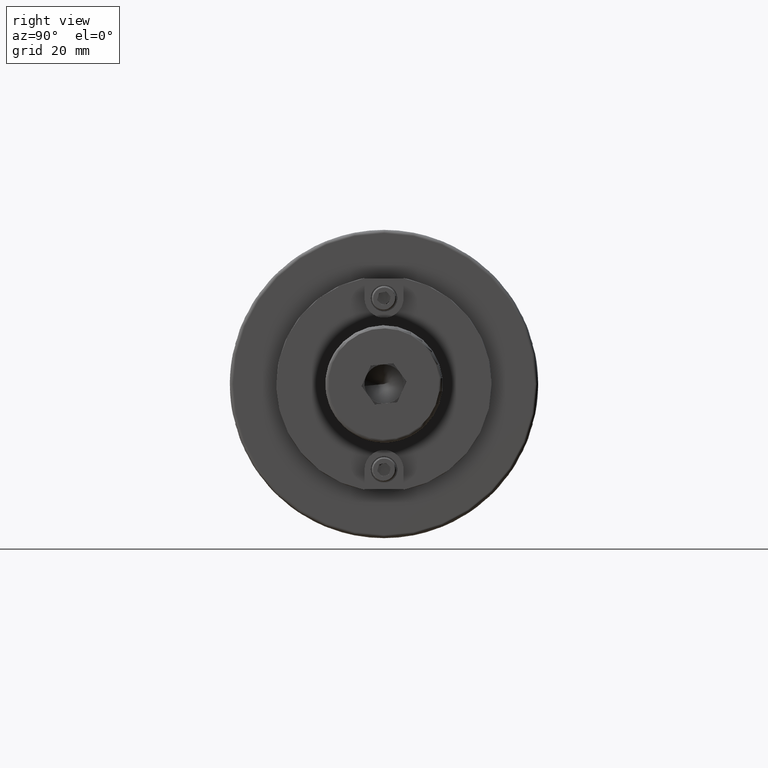
[diagram: clean part render]
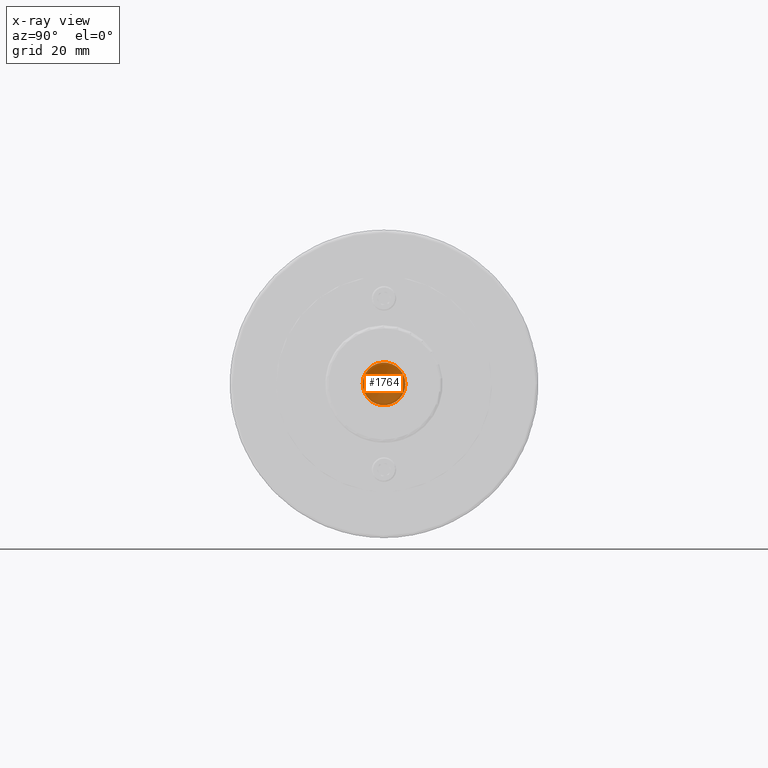
[diagram: x-ray — body ghosted, one internal face saturated and labeled with its STEP entity id]
A machine part, right view, then the same camera in x-ray: the body is ghosted and one INTERNAL B-rep face — a face not visible from any outside direction — is saturated and labeled: STEP entity #1764.
In plain terms, the highlighted planar face has unit normal (-1, -0, 0).
Its self-contained STEP definition (entity closure, byte-faithful):
#227=CIRCLE('',#2054,6.93750000000001);
#334=FACE_OUTER_BOUND('',#453,.T.);
#453=EDGE_LOOP('',(#1534));
#847=VERTEX_POINT('',#3196);
#1077=EDGE_CURVE('',#847,#847,#227,.T.);
#1534=ORIENTED_EDGE('',*,*,#1077,.F.);
#1665=PLANE('',#2060);
#1764=ADVANCED_FACE('',(#334),#1665,.T.);
#2054=AXIS2_PLACEMENT_3D('',#3197,#2532,#2533);
#2060=AXIS2_PLACEMENT_3D('',#3209,#2546,#2547);
#2532=DIRECTION('center_axis',(-1.,0.,0.));
#2533=DIRECTION('ref_axis',(0.,-1.,0.));
#2546=DIRECTION('center_axis',(1.,0.,0.));
#2547=DIRECTION('ref_axis',(0.,0.,-1.));
#3196=CARTESIAN_POINT('',(52.,6.93750000000001,-8.49598716908478E-16));
#3197=CARTESIAN_POINT('Origin',(52.,0.,0.));
#3209=CARTESIAN_POINT('Origin',(52.,1.37880508755545E-14,0.));